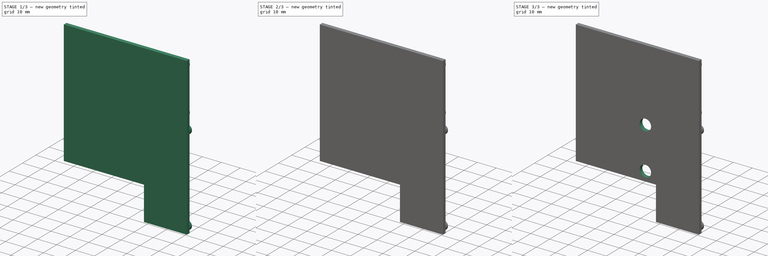
[diagram: build sequence overview — one tinted view per stage of 3, left to right]
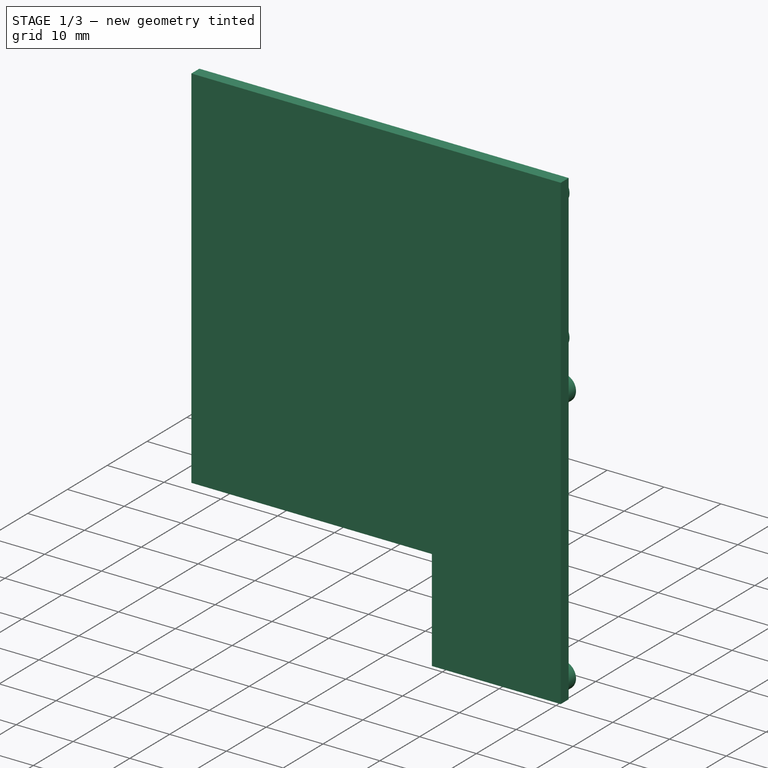
[diagram: stage 1 of 3 — iso view after this stage's code; geometry added in this stage tinted green]
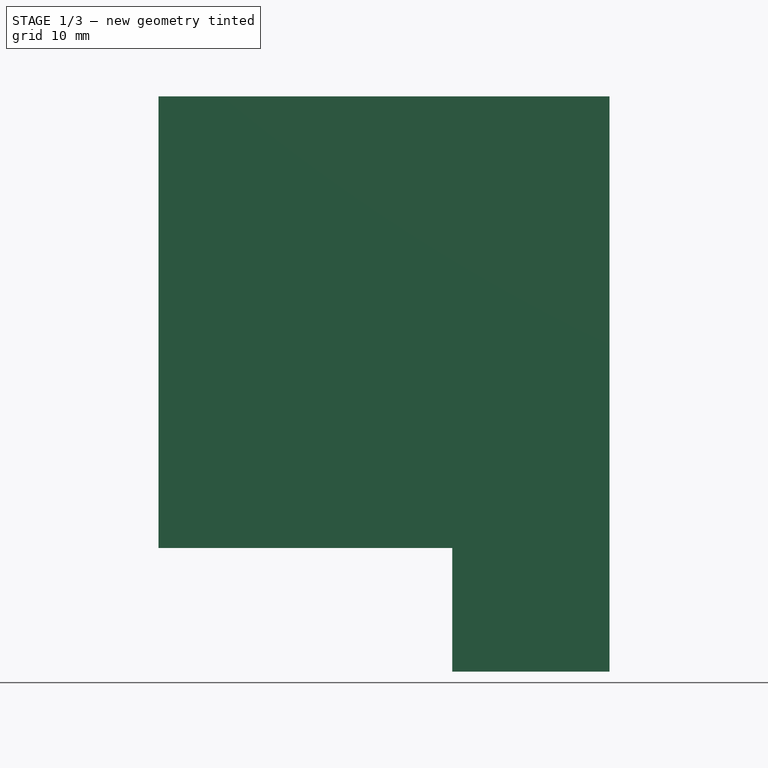
[diagram: stage 1 of 3 — front view after this stage's code; geometry added in this stage tinted green]
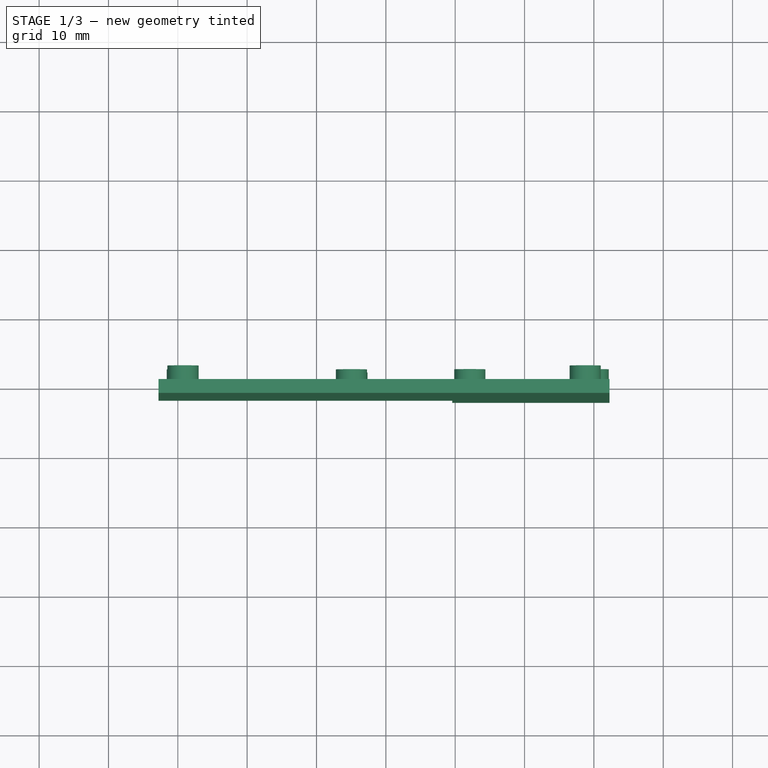
[diagram: stage 1 of 3 — top view after this stage's code; geometry added in this stage tinted green]
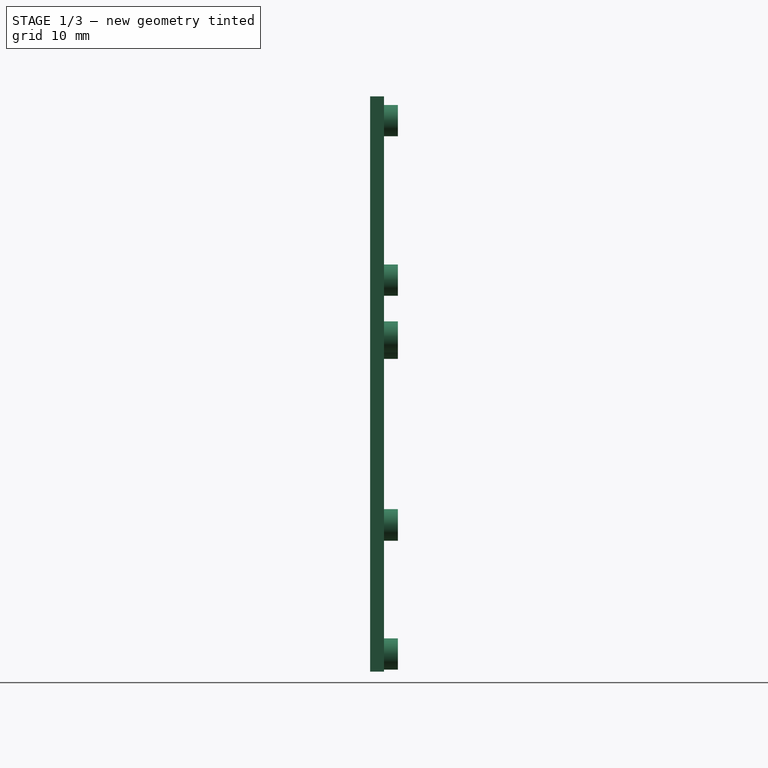
[diagram: stage 1 of 3 — right view after this stage's code; geometry added in this stage tinted green]
FCSTD DOCUMENT  (FreeCAD 0.20R29410 (Git))
Label: FlatCaseFeather
License: All rights reserved
LicenseURL: http://en.wikipedia.org/wiki/All_rights_reserved
objects: PartDesign::Pocket×5, Sketcher::SketchObject×4, Part::Feature×3, PartDesign::ShapeBinder×3, Part::Part2DObjectPython×3, PartDesign::Pad×2, PartDesign::Body×1
note: 28 computed .brp shape members not serialized (recipe doc carries the construction recipe); baked Part::Feature solids carry a one-line shape summary decoded from their .brp

FEATURE [Part::Feature] Feature  label="RapberryPiZero"
  Placement = pos=(51,-18,0) rot=(0,0,1;0rad)
  shape: bbox 65.03 x 4.481 x 31.26 mm, 6056 faces, 137 solids (baked)
FEATURE [Part::Feature] Feature001  label="ACWB"
  Placement = pos=(-154,2,-108.2) rot=(-1,0,0;1.5708rad)
  shape: bbox 31.18 x 11.64 x 33.08 mm, 471 faces, 6 solids (baked)
FEATURE [Part::Feature] Solid  label="Feather"
  Placement = pos=(126,2,-178) rot=(0.57735,0.57735,0.57735;4.18879rad)
  shape: bbox 22.86 x 1.6 x 50.8 mm, 72 faces (baked)
FEATURE [PartDesign::ShapeBinder] ShapeBinder  label="ShapeBinderFeather"
  Placement = pos=(126,2,-178) rot=(0.57735,0.57735,0.57735;4.18879rad)
  Support = -> [Solid]
  TraceSupport = false
FEATURE [PartDesign::ShapeBinder] ShapeBinder001  label="ShapeBinderPi"
  Placement = pos=(51,-18,0) rot=(0,0,1;0rad)
  Support = -> [Feature]
  TraceSupport = false
FEATURE [PartDesign::ShapeBinder] ShapeBinder002  label="ShapeBinderACWB"
  Placement = pos=(-154,2,-108.2) rot=(-1,0,0;1.5708rad)
  Support = -> [Feature001]
  TraceSupport = false
FEATURE [Sketcher::SketchObject] Sketch  label="BaseCase"
  ExternalGeometry = -> [ShapeBinder002,ShapeBinder001,ShapeBinder]
  FullyConstrained = true
  MapMode = 5
  Placement = pos=(0,0,0) rot=(1,0,0;1.5708rad)
  Support = -> [XZ_Plane]
  sketch-geometry (7):
    g0: LineSegment StartX=-32.7785 StartY=28.0542 StartZ=0 EndX=32.2436 EndY=28.0542 EndZ=0
    g1: LineSegment StartX=32.2436 StartY=28.0542 StartZ=0 EndX=32.2436 EndY=-54.8989 EndZ=0
    g2: LineSegment StartX=32.2436 StartY=-54.8989 StartZ=0 EndX=12.1064 EndY=-54.8989 EndZ=0
    g3: LineSegment StartX=-32.7785 StartY=28.0542 StartZ=0 EndX=-32.7785 EndY=-37.08 EndZ=0
    g4: LineSegment StartX=-32.7785 StartY=-37.08 StartZ=0 EndX=9.5664 EndY=-37.08 EndZ=0
    g5: LineSegment StartX=9.5664 StartY=-37.08 StartZ=0 EndX=9.5664 EndY=-54.8989 EndZ=0
    g6: LineSegment StartX=12.1064 StartY=-54.8989 StartZ=0 EndX=9.5664 EndY=-54.8989 EndZ=0
  constraints (19):
    c: Coincident(g0,g1)
    c: Coincident(g1,g2)
    c: Horizontal(g0)
    c: Horizontal(g2)
    c: Vertical(g1)
    c: PointOnObject(g-6,g0)
    c: PointOnObject(g-4,g1)
    c: Coincident(g3,g0)
    c: Coincident(g3,g-3)
    c: Vertical(g3)
    c: Coincident(g-5,g2)
    c: Coincident(g4,g3)
    c: PointOnObject(g4,g-7)
    c: Horizontal(g4)
    c: Coincident(g5,g4)
    c: Vertical(g5)
    c: Coincident(g6,g2)
    c: Coincident(g6,g5)
    c: Angle(g6,g5) = 1.5708
FEATURE [PartDesign::Pad] Pad  label="baseOfCase"
  Direction = (0,-1,2e-16)
  Length = 2
  Length2 = 10
  Placement = pos=(0,0,0) rot=(1,0,0;1.5708rad)
  Profile = -> Sketch
  ReferenceAxis = -> Sketch [N_Axis]
  Type = 0
FEATURE [Sketcher::SketchObject] Sketch001
  ExternalGeometry = -> [ShapeBinder002,ShapeBinder001,ShapeBinder]
  FullyConstrained = true
  MapMode = 5
  Placement = pos=(0,0,0) rot=(-1,0,0;1.5708rad)
  Support = -> [Pad]
  sketch-geometry (12):
    g0: Circle CenterX=-29.286 CenterY=33.778 CenterZ=0 NormalX=0 NormalY=0 NormalZ=1 AngleXU=0 Radius=2.25
    g1: Circle CenterX=-4.902 CenterY=33.7145 CenterZ=0 NormalX=0 NormalY=0 NormalZ=1 AngleXU=0 Radius=2.25
    g2: Circle CenterX=-29.3495 CenterY=7.5525 CenterZ=0 NormalX=0 NormalY=0 NormalZ=1 AngleXU=0 Radius=2.25
    g3: Circle CenterX=-4.9655 CenterY=7.489 CenterZ=0 NormalX=0 NormalY=0 NormalZ=1 AngleXU=0 Radius=2.25
    g4: Circle CenterX=-29.2564 CenterY=-1.55424 CenterZ=0 NormalX=0 NormalY=0 NormalZ=1 AngleXU=0 Radius=2.25
    g5: Circle CenterX=-29.2564 CenterY=-24.5542 CenterZ=0 NormalX=0 NormalY=0 NormalZ=1 AngleXU=0 Radius=2.25
    g6: Circle CenterX=28.7436 CenterY=-24.5542 CenterZ=0 NormalX=0 NormalY=0 NormalZ=1 AngleXU=0 Radius=2.25
    g7: Circle CenterX=28.7436 CenterY=-1.55424 CenterZ=0 NormalX=0 NormalY=0 NormalZ=1 AngleXU=0 Radius=2.25
    g8: Circle CenterX=12.1064 CenterY=52.3589 CenterZ=0 NormalX=0 NormalY=0 NormalZ=1 AngleXU=0 Radius=2.25
    g9: Circle CenterX=29.8864 CenterY=52.3589 CenterZ=0 NormalX=0 NormalY=0 NormalZ=1 AngleXU=0 Radius=2.25
    g10: Circle CenterX=12.1064 CenterY=6.6389 CenterZ=0 NormalX=0 NormalY=0 NormalZ=1 AngleXU=0 Radius=2.25
    g11: Circle CenterX=29.8864 CenterY=6.6389 CenterZ=0 NormalX=0 NormalY=0 NormalZ=1 AngleXU=0 Radius=2.25
  constraints (24):
    c: Coincident(g0,g-3)
    c: Coincident(g1,g-4)
    c: Coincident(g2,g-13)
    c: Coincident(g3,g-14)
    c: Coincident(g4,g-5)
    c: Coincident(g5,g-6)
    c: Coincident(g6,g-7)
    c: Coincident(g7,g-8)
    c: Coincident(g8,g-11)
    c: Coincident(g9,g-12)
    c: Coincident(g10,g-10)
    c: Coincident(g11,g-9)
    c: Equal(g11,g9)
    c: Equal(g11,g8)
    c: Equal(g11,g10)
    c: Equal(g11,g7)
    c: Equal(g11,g6)
    c: Equal(g11,g4)
    c: Equal(g11,g5)
    c: Equal(g11,g2)
    c: Equal(g11,g3)
    c: Equal(g11,g1)
    c: Equal(g11,g0)
    c: Diameter(g11) = 4.5
FEATURE [PartDesign::Pad] Pad001  label="ScrewPads"
  BaseFeature = -> Pad
  Direction = (0,1,-2e-16)
  Length = 2
  Length2 = 10
  Placement = pos=(0,0,0) rot=(1,0,0;1.5708rad)
  Profile = -> Sketch001
  ReferenceAxis = -> Sketch001 [N_Axis]
  Type = 0
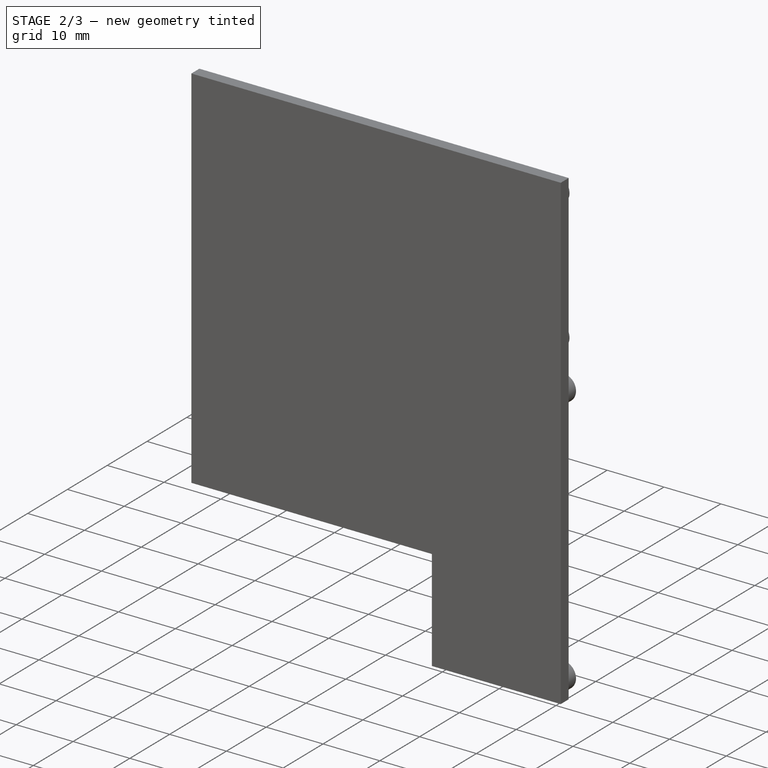
[diagram: stage 2 of 3 — iso view after this stage's code; geometry added in this stage tinted green]
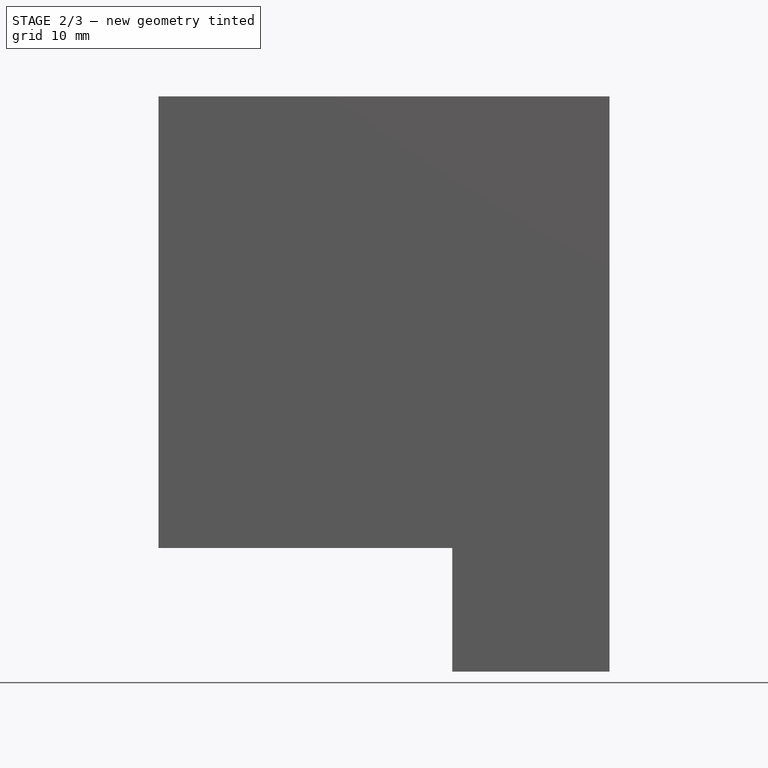
[diagram: stage 2 of 3 — front view after this stage's code; geometry added in this stage tinted green]
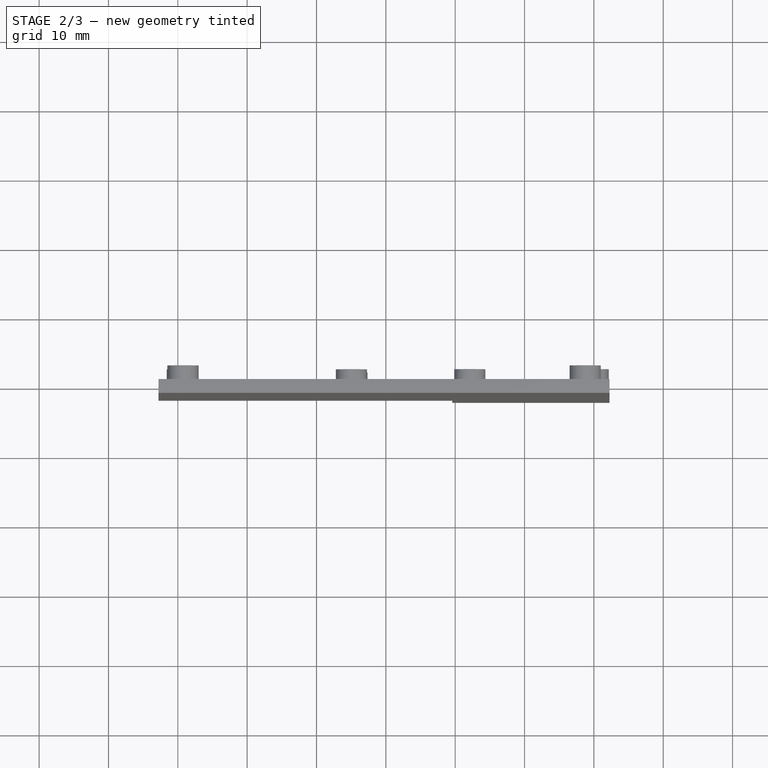
[diagram: stage 2 of 3 — top view after this stage's code; geometry added in this stage tinted green]
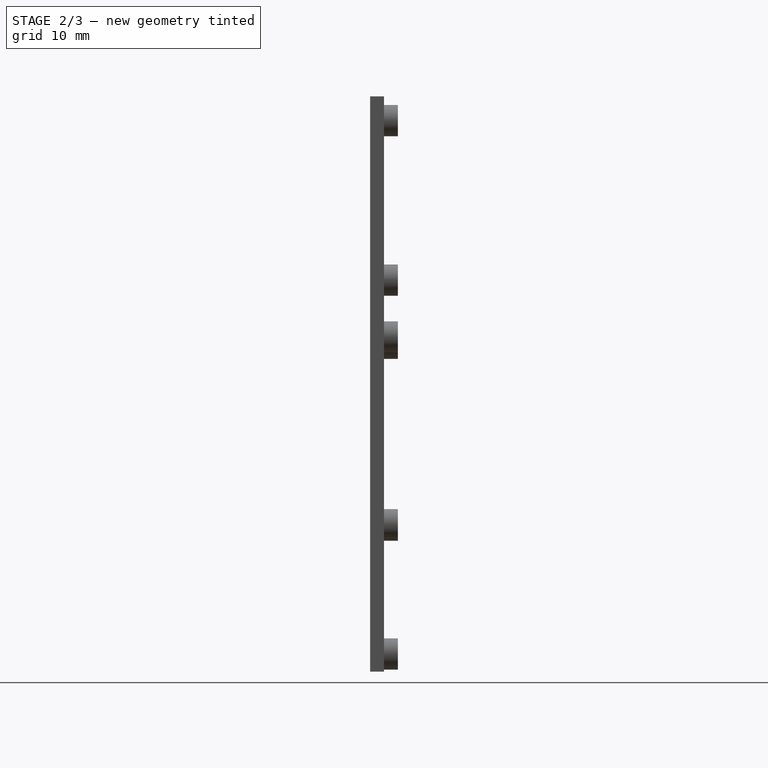
[diagram: stage 2 of 3 — right view after this stage's code; geometry added in this stage tinted green]
FEATURE [Sketcher::SketchObject] Sketch002
  ExternalGeometry = -> [Pad001]
  FullyConstrained = true
  MapMode = 5
  Placement = pos=(0,2,-4e-16) rot=(-1,0,0;1.5708rad)
  Support = -> [Pad001]
  sketch-geometry (12):
    g0: Circle CenterX=-29.286 CenterY=33.778 CenterZ=0 NormalX=0 NormalY=0 NormalZ=1 AngleXU=0 Radius=0.95
    g1: Circle CenterX=-4.902 CenterY=33.7145 CenterZ=0 NormalX=0 NormalY=0 NormalZ=1 AngleXU=0 Radius=0.95
    g2: Circle CenterX=12.1064 CenterY=52.3589 CenterZ=0 NormalX=0 NormalY=0 NormalZ=1 AngleXU=0 Radius=0.95
    g3: Circle CenterX=29.8864 CenterY=52.3589 CenterZ=0 NormalX=0 NormalY=0 NormalZ=1 AngleXU=0 Radius=0.95
    g4: Circle CenterX=29.8864 CenterY=6.6389 CenterZ=0 NormalX=0 NormalY=0 NormalZ=1 AngleXU=0 Radius=0.95
    g5: Circle CenterX=12.1064 CenterY=6.6389 CenterZ=0 NormalX=0 NormalY=0 NormalZ=1 AngleXU=0 Radius=0.95
    g6: Circle CenterX=-4.9655 CenterY=7.489 CenterZ=0 NormalX=0 NormalY=0 NormalZ=1 AngleXU=0 Radius=0.95
    g7: Circle CenterX=-29.3495 CenterY=7.5525 CenterZ=0 NormalX=0 NormalY=0 NormalZ=1 AngleXU=0 Radius=0.95
    g8: Circle CenterX=-29.2564 CenterY=-1.55424 CenterZ=0 NormalX=0 NormalY=0 NormalZ=1 AngleXU=0 Radius=0.95
    g9: Circle CenterX=-29.2564 CenterY=-24.5542 CenterZ=0 NormalX=0 NormalY=0 NormalZ=1 AngleXU=0 Radius=0.95
    g10: Circle CenterX=28.7436 CenterY=-24.5542 CenterZ=0 NormalX=0 NormalY=0 NormalZ=1 AngleXU=0 Radius=0.95
    g11: Circle CenterX=28.7436 CenterY=-1.55424 CenterZ=0 NormalX=0 NormalY=0 NormalZ=1 AngleXU=0 Radius=0.95
  constraints (24):
    c: Coincident(g0,g-3)
    c: Coincident(g1,g-4)
    c: Coincident(g2,g-13)
    c: Coincident(g3,g-14)
    c: Coincident(g4,g-12)
    c: Coincident(g5,g-11)
    c: Coincident(g6,g-5)
    c: Coincident(g7,g-6)
    c: Coincident(g8,g-7)
    c: Coincident(g9,g-8)
    c: Coincident(g10,g-9)
    c: Coincident(g11,g-10)
    c: Equal(g1,g0)
    c: Equal(g1,g2)
    c: Equal(g1,g3)
    c: Equal(g1,g7)
    c: Equal(g1,g6)
    c: Equal(g1,g5)
    c: Equal(g1,g4)
    c: Equal(g1,g11)
    c: Equal(g1,g8)
    c: Equal(g1,g9)
    c: Equal(g1,g10)
    c: Diameter(g1) = 1.9
FEATURE [PartDesign::Pocket] Pocket  label="ScrewHoles"
  BaseFeature = -> Pad001
  Direction = (0,-1,2e-16)
  Length = 3
  Length2 = 5
  Placement = pos=(0,0,0) rot=(1,0,0;1.5708rad)
  Profile = -> Sketch002
  ReferenceAxis = -> Sketch002 [N_Axis]
  Type = 0
FEATURE [Part::Part2DObjectPython] ShapeString  label="Pi0Label"  # Draft 2D object (typed FeaturePython)
  FontFile = <path>
  MakeFace = true
  Placement = pos=(5.22,0.71,10) rot=(0,0.707107,0.707107;3.14159rad)
  Size = 6
  String = Pi 0
  Tracking = 0
FEATURE [PartDesign::Pocket] Pocket001  label="Pi0Cut"
  BaseFeature = -> Pocket
  Direction = (-1e-16,-1,-2e-16)
  Length = 1
  Length2 = 5
  Placement = pos=(0,0,0) rot=(1,0,0;1.5708rad)
  Profile = -> ShapeString
  ReferenceAxis = -> ShapeString [N_Axis]
  Type = 0
FEATURE [Part::Part2DObjectPython] ShapeString001  label="FeatherLabel"  # Draft 2D object (typed FeaturePython)
  FontFile = <path>
  MakeFace = true
  Placement = pos=(22.59,1,-20.59) rot=(0.57735,-0.57735,-0.57735;4.18879rad)
  Size = 6
  String = Feather
  Tracking = 0
FEATURE [Part::Part2DObjectPython] ShapeString002  label="ACWBlabel"  # Draft 2D object (typed FeaturePython)
  FontFile = <path>
  MakeFace = true
  Placement = pos=(-5.25,-5e-16,-24.46) rot=(0,0.707107,0.707107;3.14159rad)
  Size = 6
  String = ACWB
  Tracking = 0
FEATURE [PartDesign::Pocket] Pocket002  label="ACWBcut"
  BaseFeature = -> Pocket001
  Direction = (0,-1,2e-16)
  Length = 1
  Length2 = 5
  Placement = pos=(0,0,0) rot=(1,0,0;1.5708rad)
  Profile = -> ShapeString002
  ReferenceAxis = -> ShapeString002 [N_Axis]
  Type = 0
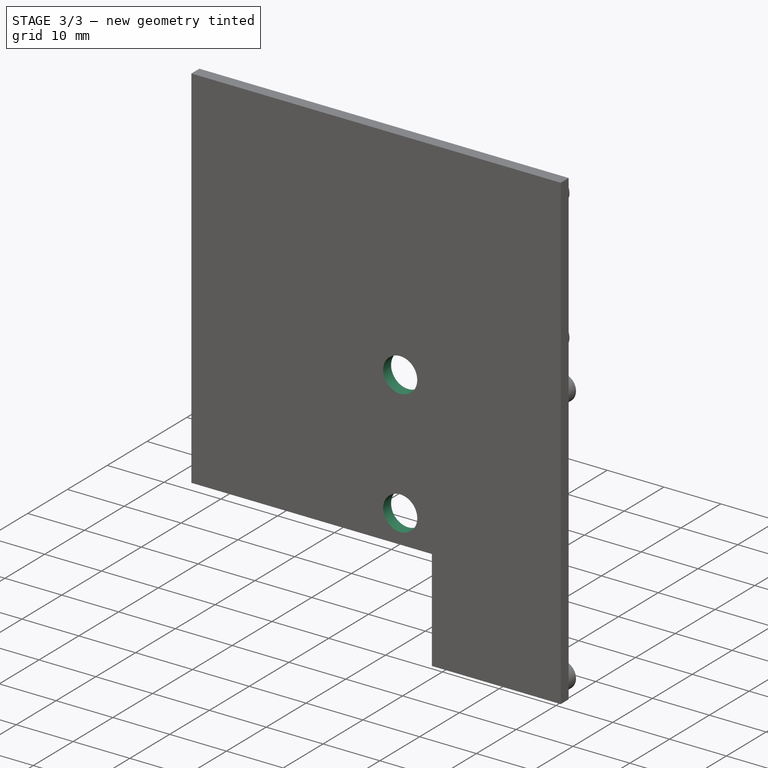
[diagram: stage 3 of 3 — iso view after this stage's code; geometry added in this stage tinted green]
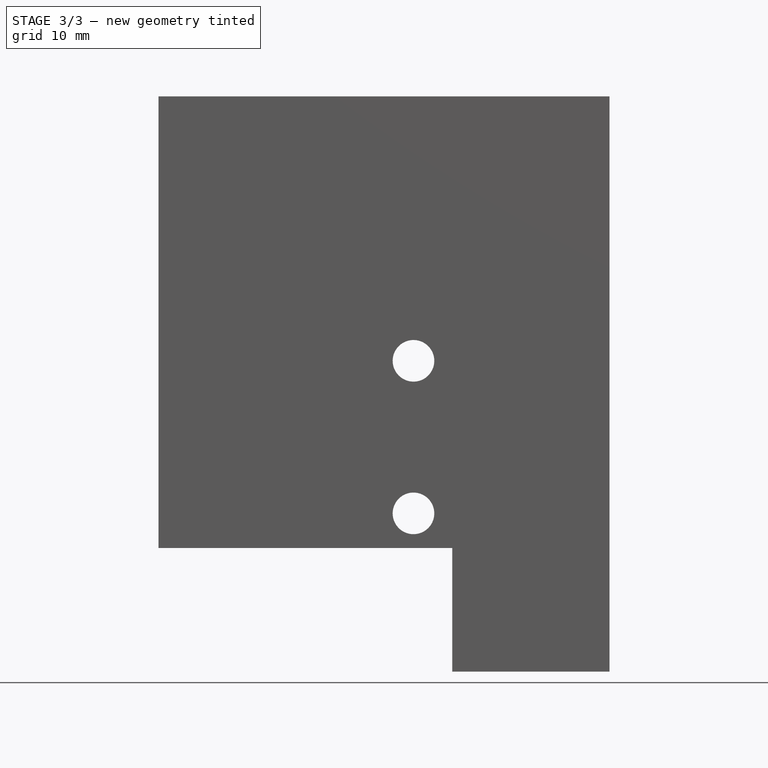
[diagram: stage 3 of 3 — front view after this stage's code; geometry added in this stage tinted green]
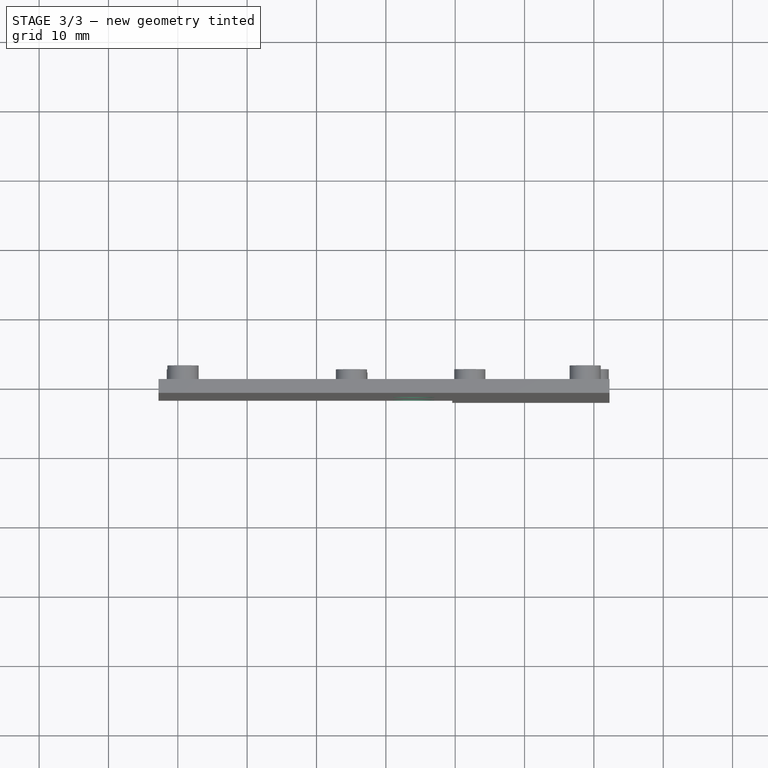
[diagram: stage 3 of 3 — top view after this stage's code; geometry added in this stage tinted green]
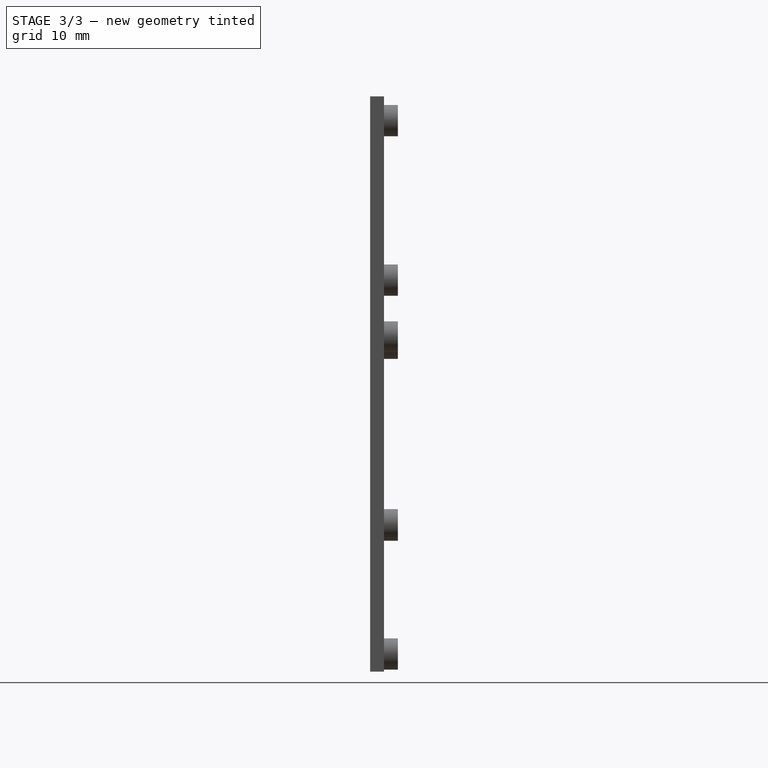
[diagram: stage 3 of 3 — right view after this stage's code; geometry added in this stage tinted green]
FEATURE [PartDesign::Pocket] Pocket003  label="FeatherCut"
  BaseFeature = -> Pocket002
  Direction = (8.74228e-08,-1,2.98023e-08)
  Length = 1.5
  Length2 = 5
  Placement = pos=(0,0,0) rot=(1,0,0;1.5708rad)
  Profile = -> ShapeString001
  ReferenceAxis = -> ShapeString001 [N_Axis]
  Type = 0
FEATURE [Sketcher::SketchObject] Sketch003
  ExternalGeometry = -> [Pocket003,ShapeBinder002,ShapeBinder,ShapeBinder001]
  FullyConstrained = true
  MapMode = 5
  Placement = pos=(0,0,0) rot=(-1,0,0;1.5708rad)
  Support = -> [Pocket003]
  sketch-geometry (4):
    g0: Circle CenterX=3.9832 CenterY=32.08 CenterZ=0 NormalX=0 NormalY=0 NormalZ=1 AngleXU=0 Radius=3
    g1: Circle CenterX=3.9832 CenterY=10.08 CenterZ=0 NormalX=0 NormalY=0 NormalZ=1 AngleXU=0 Radius=3
    g2: LineSegment StartX=-1.6 StartY=37.08 StartZ=0 EndX=3.9832 EndY=32.08 EndZ=0
    g3: LineSegment StartX=3.9832 StartY=32.08 StartZ=0 EndX=9.5664 EndY=37.08 EndZ=0
  constraints (10):
    c: Coincident(g2,g-4)
    c: Coincident(g3,g2)
    c: Coincident(g3,g-3)
    c: Equal(g2,g3)
    c: Coincident(g0,g2)
    c: DistanceY(g0,g2) = 5
    c: DistanceX(g0,g1) = 0
    c: DistanceY(g1,g0) = 22
    c: Equal(g1,g0)
    c: Radius(g1) = 3
FEATURE [PartDesign::Pocket] Pocket004  label="MountHoles"
  BaseFeature = -> Pocket003
  Direction = (0,-1,2e-16)
  Length = 5
  Length2 = 5
  Placement = pos=(0,0,0) rot=(1,0,0;1.5708rad)
  Profile = -> Sketch003
  ReferenceAxis = -> Sketch003 [N_Axis]
  Type = 0
FEATURE [PartDesign::Body] Body  label="Merged"
  Group = -> [ShapeBinder,ShapeBinder001,ShapeBinder002,Sketch,Pad,Sketch001,Pad001,Sketch002,Pocket,ShapeString,Pocket001,ShapeString001,ShapeString002,Pocket002,Pocket003,Sketch003,Pocket004]
  Origin = -> Origin
  Tip = -> Pocket004
note: 3 file-system paths scrubbed to <path> (originals preserved in the JSON sidecar)
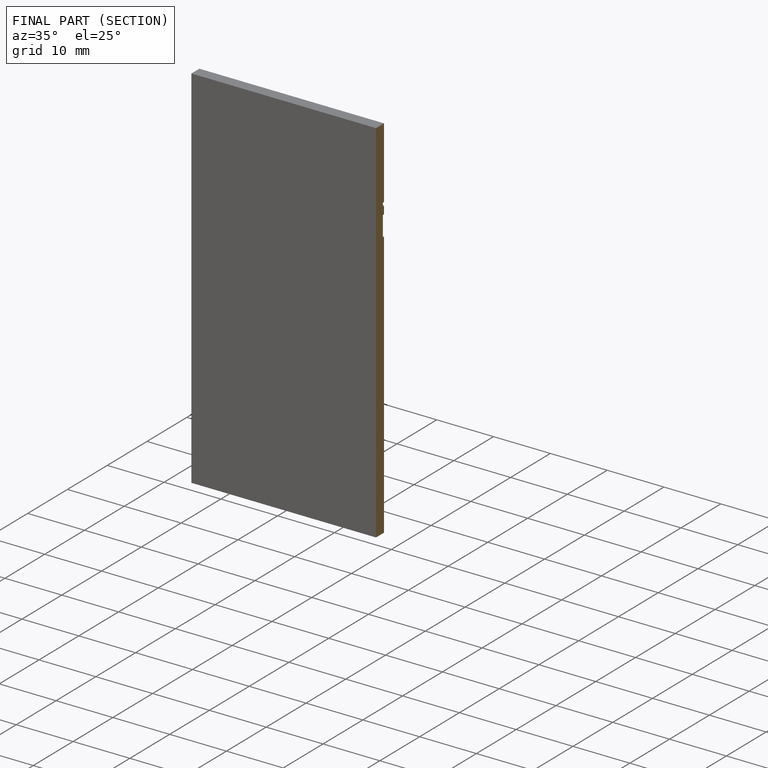
[diagram: finished part — half-section view (interior)]
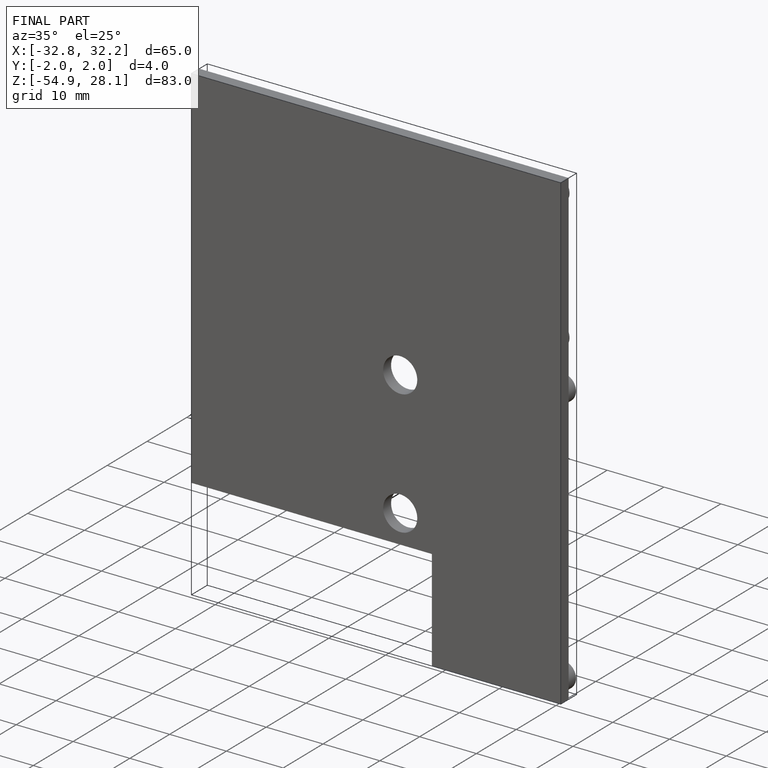
[diagram: finished part — iso view with bounding-box wireframe]
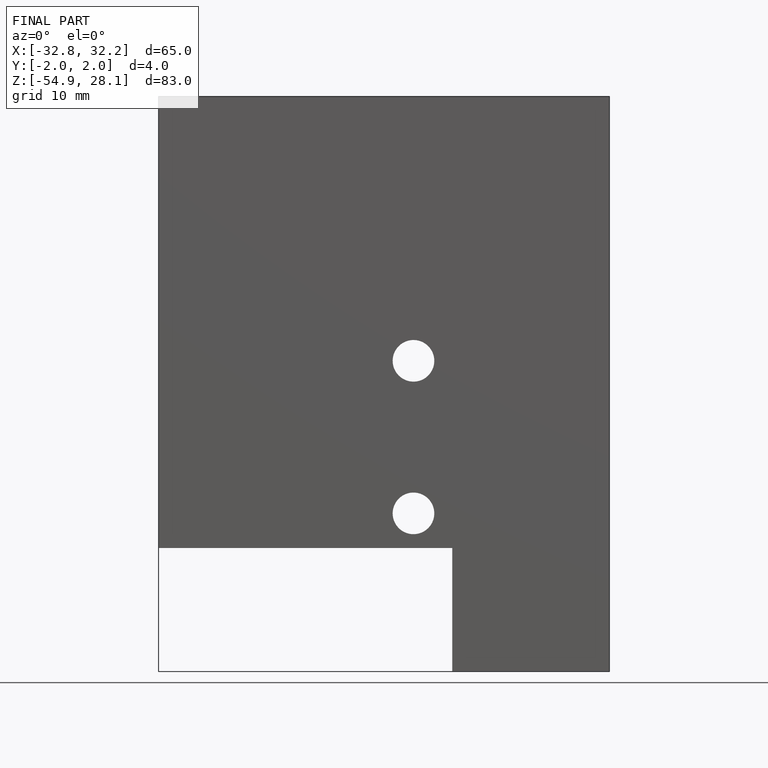
[diagram: finished part — front view with bounding-box wireframe]
